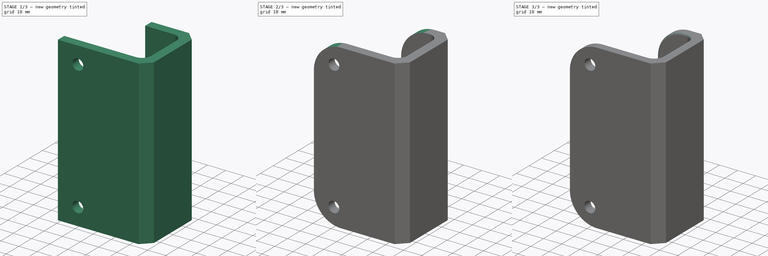
[diagram: build sequence overview — one tinted view per stage of 3, left to right]
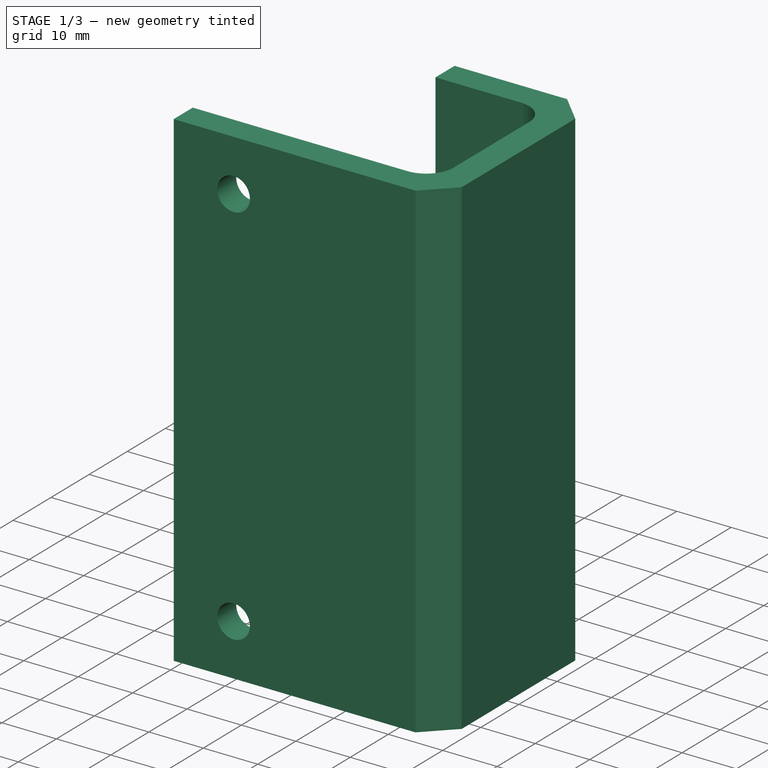
[diagram: stage 1 of 3 — iso view after this stage's code; geometry added in this stage tinted green]
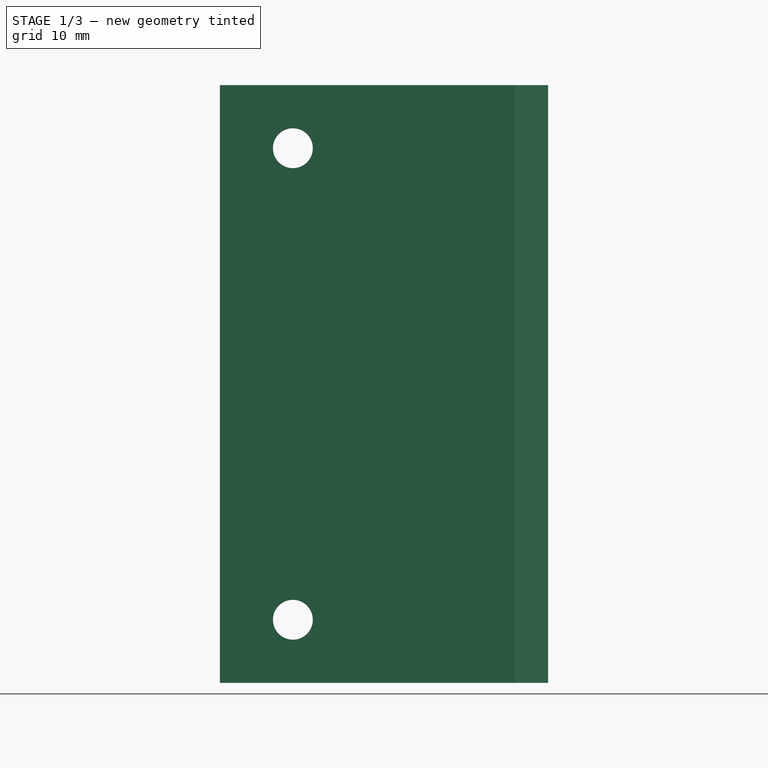
[diagram: stage 1 of 3 — front view after this stage's code; geometry added in this stage tinted green]
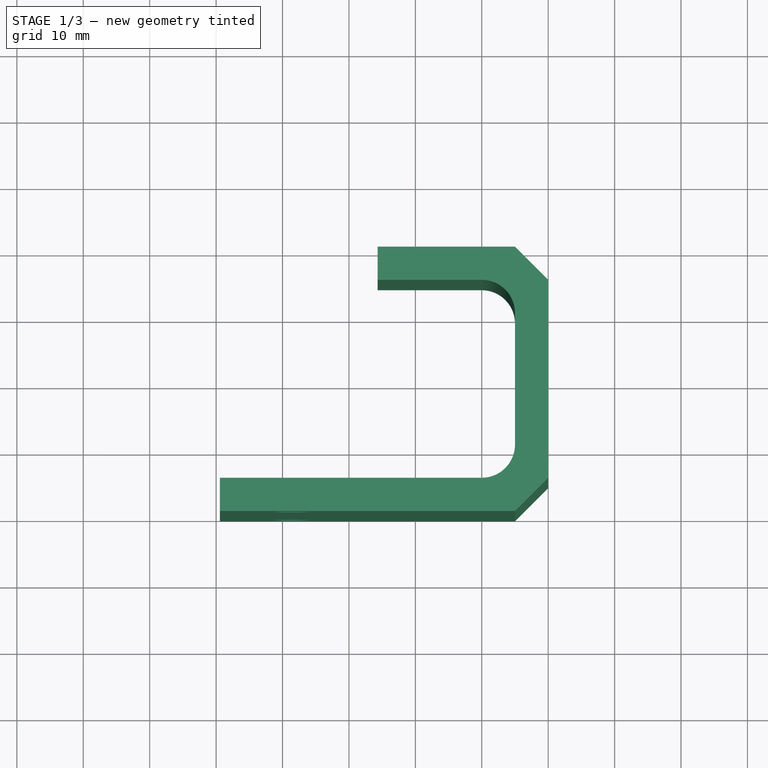
[diagram: stage 1 of 3 — top view after this stage's code; geometry added in this stage tinted green]
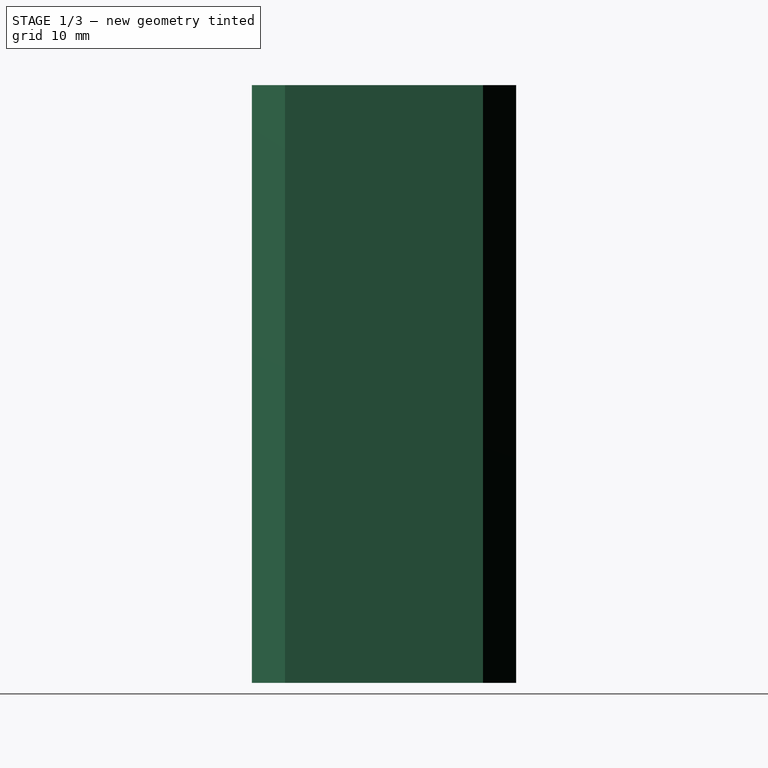
[diagram: stage 1 of 3 — right view after this stage's code; geometry added in this stage tinted green]
FCSTD DOCUMENT  (FreeCAD 1.1R42149 (Git))
Label: penshurst towel holder
License: All rights reserved
LicenseURL: https://en.wikipedia.org/wiki/All_rights_reserved
objects: PartDesign::Fillet×3, Sketcher::SketchObject×2, App::Point×1, PartDesign::Pad×1, PartDesign::Pocket×1, PartDesign::Body×1
note: 20 computed .brp shape members not serialized (recipe doc carries the construction recipe); baked Part::Feature solids carry a one-line shape summary decoded from their .brp

FEATURE [App::Point] Origin001
  Role = Origin
FEATURE [Sketcher::SketchObject] Sketch
  ArcFitTolerance = 1e-06
  AttachmentSupport = -> [Origin]
  ExternalTypes = [0]
  FullyConstrained = false
  MakeInternals = false
  MapMode = 5
  sketch-geometry (18):
    g0: LineSegment StartX=-49.4418 StartY=0 StartZ=0 EndX=-5 EndY=0 EndZ=0
    g1: LineSegment StartX=-1.26e-14 StartY=5 StartZ=0 EndX=-2.04e-14 EndY=8.13956 EndZ=0
    g2: LineSegment StartX=-20 StartY=5 StartZ=0 EndX=-49.4418 EndY=5 EndZ=0
    g3: LineSegment StartX=-49.4418 StartY=5 StartZ=0 EndX=-49.4418 EndY=0 EndZ=0
    g4: LineSegment StartX=-2.04e-14 StartY=8.13956 StartZ=0 EndX=0 EndY=34.804 EndZ=0
    g5: LineSegment StartX=-5 StartY=39.804 StartZ=0 EndX=-25.6872 EndY=39.804 EndZ=0
    g6: LineSegment StartX=-25.6872 StartY=39.804 StartZ=0 EndX=-25.6872 EndY=34.804 EndZ=0
    g7: LineSegment StartX=-20 StartY=5 StartZ=0 EndX=-10 EndY=5 EndZ=0
    g8: LineSegment StartX=-5 StartY=10 StartZ=0 EndX=-5 EndY=29.804 EndZ=0
    g9: LineSegment StartX=-10 StartY=34.804 StartZ=0 EndX=-25.6872 EndY=34.804 EndZ=0
    g10: ArcOfCircle CenterX=-10 CenterY=10 CenterZ=0 NormalX=0 NormalY=0 NormalZ=1 AngleXU=0 Radius=5 StartAngle=4.71239 EndAngle=6.28319
    g11: GeomPoint [constr] X=-5 Y=5 Z=0
    g12: ArcOfCircle CenterX=-10 CenterY=29.804 CenterZ=0 NormalX=0 NormalY=0 NormalZ=1 AngleXU=0 Radius=5 StartAngle=0 EndAngle=1.5708
    g13: GeomPoint [constr] X=-5 Y=34.804 Z=0
    g14: GeomPoint [constr] X=14.3128 Y=40 Z=0
    g15: GeomPoint [constr] X=0 Y=0 Z=0
    g16: LineSegment StartX=-5 StartY=0 StartZ=0 EndX=-1.24e-14 EndY=5 EndZ=0
    g17: LineSegment StartX=0 StartY=34.804 StartZ=0 EndX=-5 EndY=39.804 EndZ=0
  constraints (37):
    c: Horizontal(g0)
    c: Vertical(g3)
    c: Coincident(g5,g6)
    c: Coincident(g4,g1)
    c: DistanceX(g5,g14) = 40
    c: Vertical(g8)
    c: Horizontal(g7)
    c: Horizontal(g9)
    c: Horizontal(g2)
    c: Coincident(g3,g2)
    c: DistanceY(g3,g3) = 5
    c: Coincident(g3,g0)
    c: Coincident(g15,g-1)
    c: PointOnObject(g11,g8)
    c: PointOnObject(g11,g7)
    c: Tangent(g8,g10) = -1.5708
    c: Tangent(g7,g10) = -1.5708
    c: PointOnObject(g13,g9)
    c: PointOnObject(g13,g8)
    c: Tangent(g9,g12) = -1.5708
    c: Tangent(g8,g12) = -1.5708
    c: PointOnObject(g15,g1)
    c: PointOnObject(g15,g0)
    c: Equal(g10,g12)
    c: DistanceY(g9,g5) = 5
    c: Coincident(g2,g7)
    c: Horizontal(g5)
    c: Horizontal(g4,g9)
    c: Vertical(g5,g8)
    c: Horizontal(g1,g7)
    c: Vertical(g0,g8)
    c: Vertical(g6)
    c: Coincident(g6,g9)
    c: Coincident(g16,g0)
    c: Coincident(g16,g1)
    c: Coincident(g17,g4)
    c: Coincident(g17,g5)
FEATURE [PartDesign::Pad] Pad
  Direction = (0,0,1)
  Length = 90
  Length2 = 10
  Profile = -> Sketch
  ReferenceAxis = -> Sketch [N_Axis]
  Refine = true
  Suppressed = false
  Type = 0
FEATURE [Sketcher::SketchObject] Sketch001
  ArcFitTolerance = 1e-06
  ExternalGeometry = -> [Pad]
  ExternalTypes = [0]
  FullyConstrained = false
  MakeInternals = false
  MapMode = 5
  Placement = pos=(0,5,0) rot=(0,0.707107,0.707107;3.14159rad)
  sketch-geometry (3):
    g0: Circle CenterX=38.4418 CenterY=80.5 CenterZ=0 NormalX=0 NormalY=0 NormalZ=1 AngleXU=0 Radius=3
    g1: Circle CenterX=38.4418 CenterY=9.5 CenterZ=0 NormalX=0 NormalY=0 NormalZ=1 AngleXU=0 Radius=3
    g2: GeomPoint [constr] X=48.9418 Y=45 Z=0
  constraints (6):
    c: Vertical(g1,g0)
    c: DistanceY(g1,g0) = 71
    c: Equal(g0,g1)
    c: Diameter(g0) = 6
    c: DistanceY(g2,g0) = 35.5
    c: Symmetric(g-4,g-3,g2)
FEATURE [PartDesign::Pocket] Pocket
  BaseFeature = -> Pad
  Direction = (0,-1,2e-16)
  Length = 5
  Length2 = 5
  Profile = -> Sketch001
  ReferenceAxis = -> Sketch001 [N_Axis]
  Refine = true
  Suppressed = false
  Type = 0
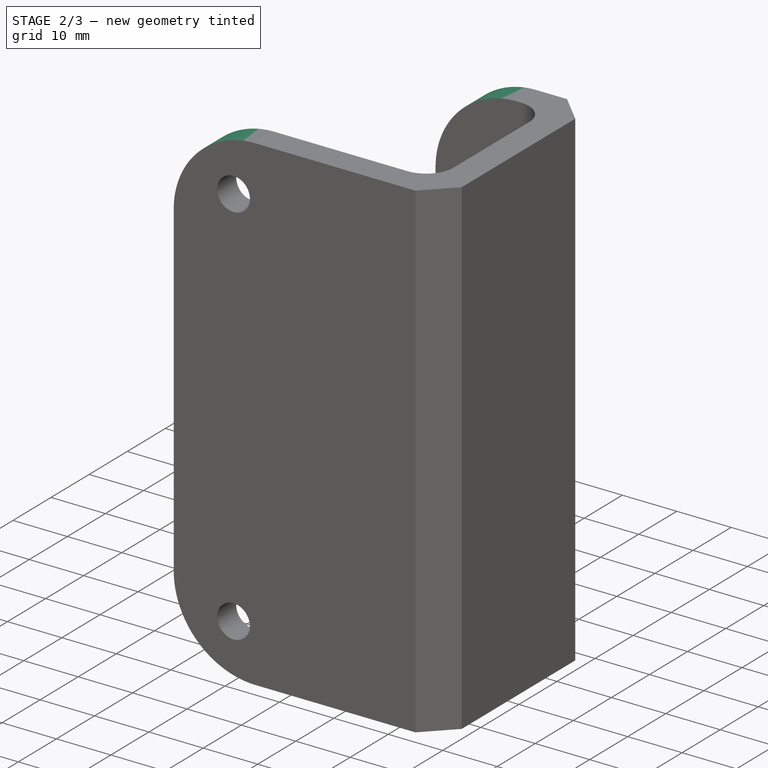
[diagram: stage 2 of 3 — iso view after this stage's code; geometry added in this stage tinted green]
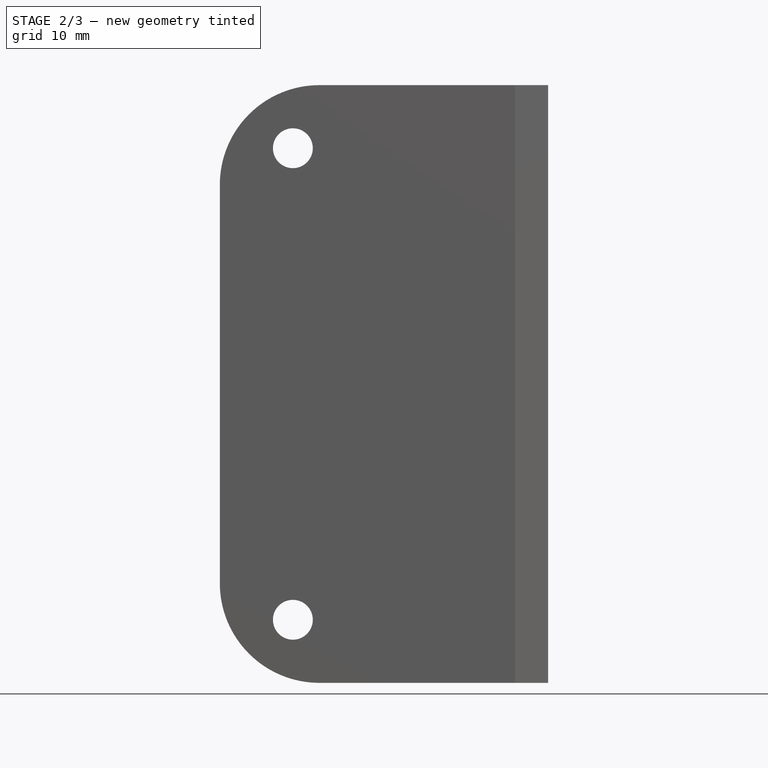
[diagram: stage 2 of 3 — front view after this stage's code; geometry added in this stage tinted green]
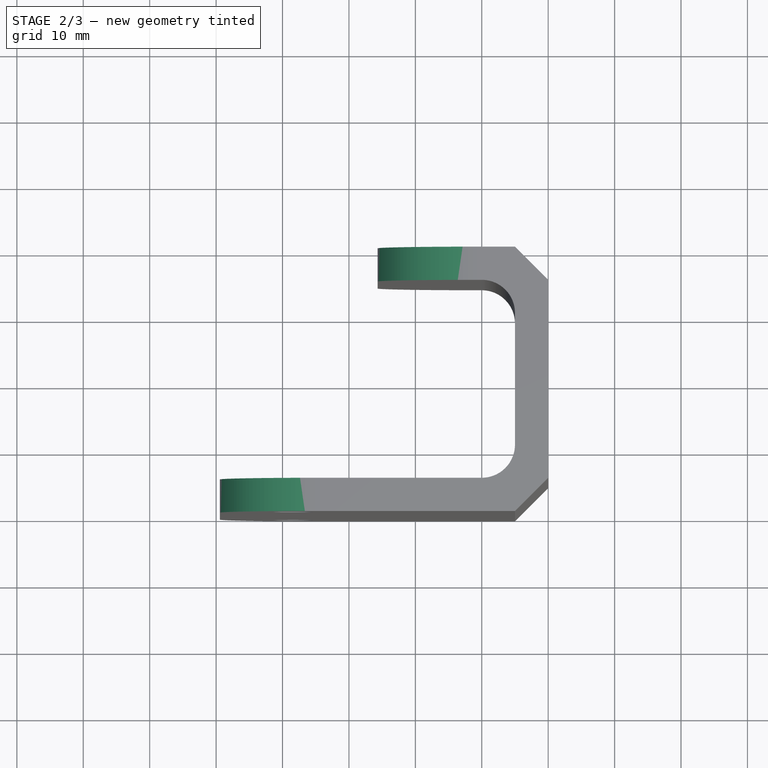
[diagram: stage 2 of 3 — top view after this stage's code; geometry added in this stage tinted green]
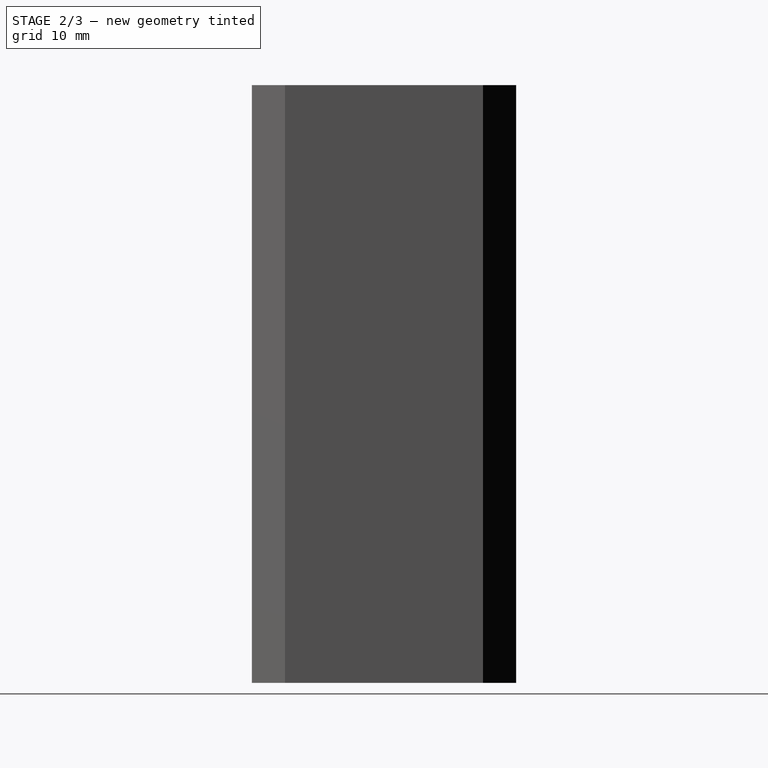
[diagram: stage 2 of 3 — right view after this stage's code; geometry added in this stage tinted green]
FEATURE [PartDesign::Fillet] Fillet
  Base = -> Pocket [Edge28,Edge19,Edge3,Edge4]
  BaseFeature = -> Pocket
  Radius = 15
  Refine = true
  SupportTransform = false
  Suppressed = false
  UseAllEdges = false
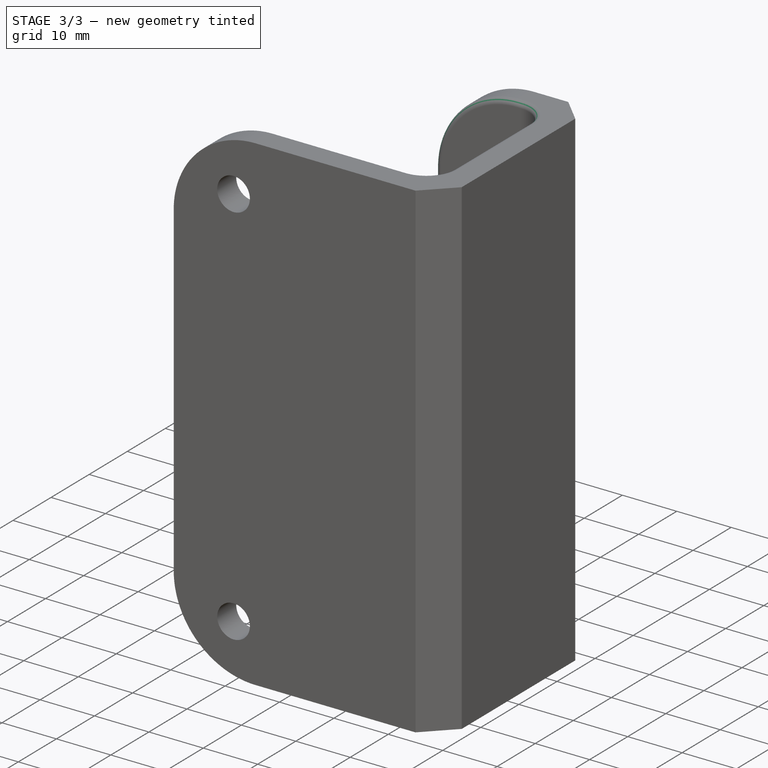
[diagram: stage 3 of 3 — iso view after this stage's code; geometry added in this stage tinted green]
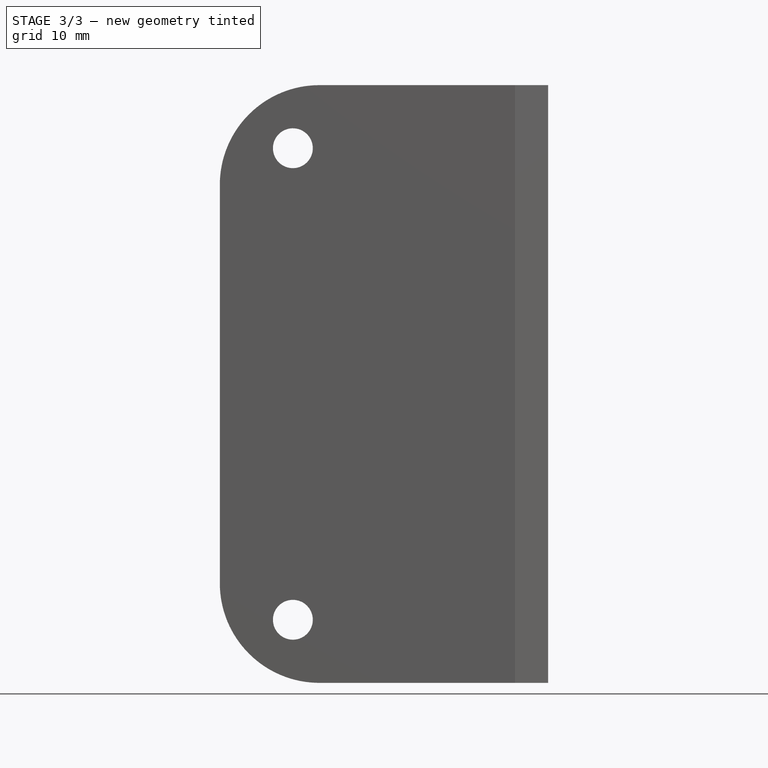
[diagram: stage 3 of 3 — front view after this stage's code; geometry added in this stage tinted green]
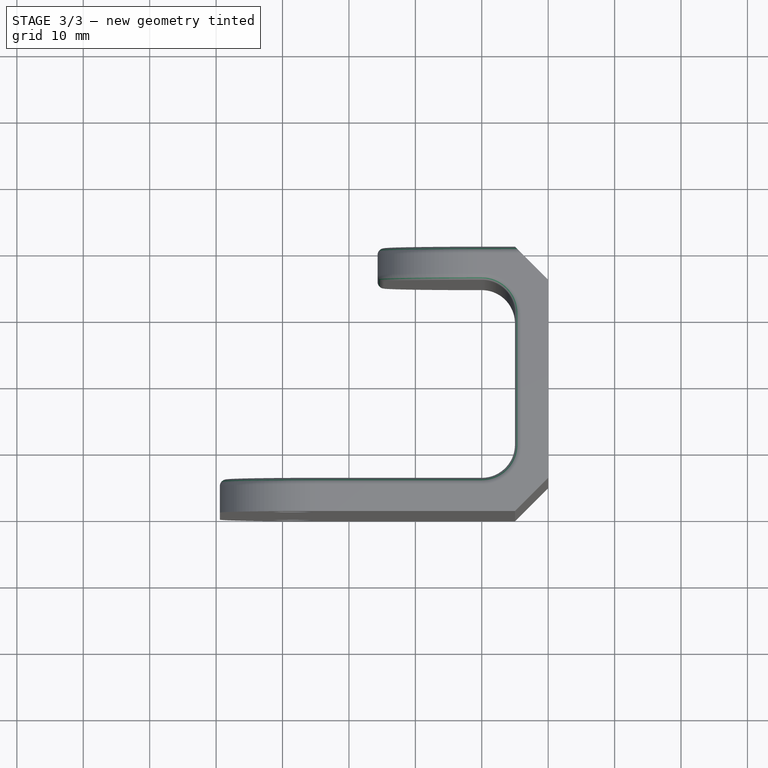
[diagram: stage 3 of 3 — top view after this stage's code; geometry added in this stage tinted green]
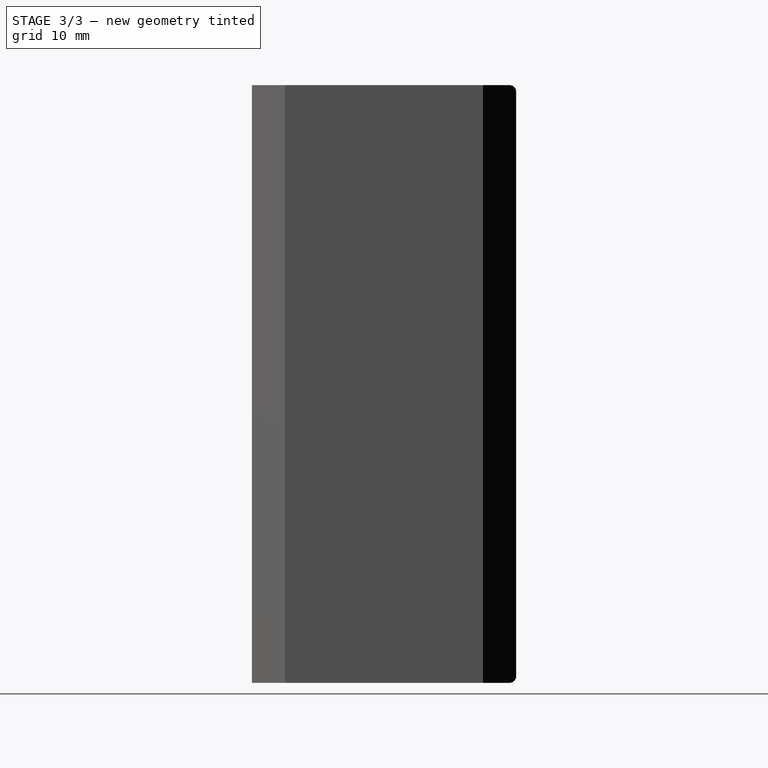
[diagram: stage 3 of 3 — right view after this stage's code; geometry added in this stage tinted green]
FEATURE [PartDesign::Fillet] Fillet001
  Base = -> Fillet [Edge1,Edge6,Edge8,Edge5,Edge7]
  BaseFeature = -> Fillet
  Radius = 1
  Refine = true
  SupportTransform = false
  Suppressed = false
  UseAllEdges = false
FEATURE [PartDesign::Fillet] Fillet002
  Base = -> Fillet001 [Edge64,Edge62,Edge63]
  BaseFeature = -> Fillet001
  Radius = 1
  Refine = true
  SupportTransform = false
  Suppressed = false
  UseAllEdges = false
FEATURE [PartDesign::Body] Body
  AllowCompound = false
  Group = -> [Sketch,Pad,Sketch001,Pocket,Fillet,Fillet001,Fillet002]
  Origin = -> Origin
  Tip = -> Fillet002
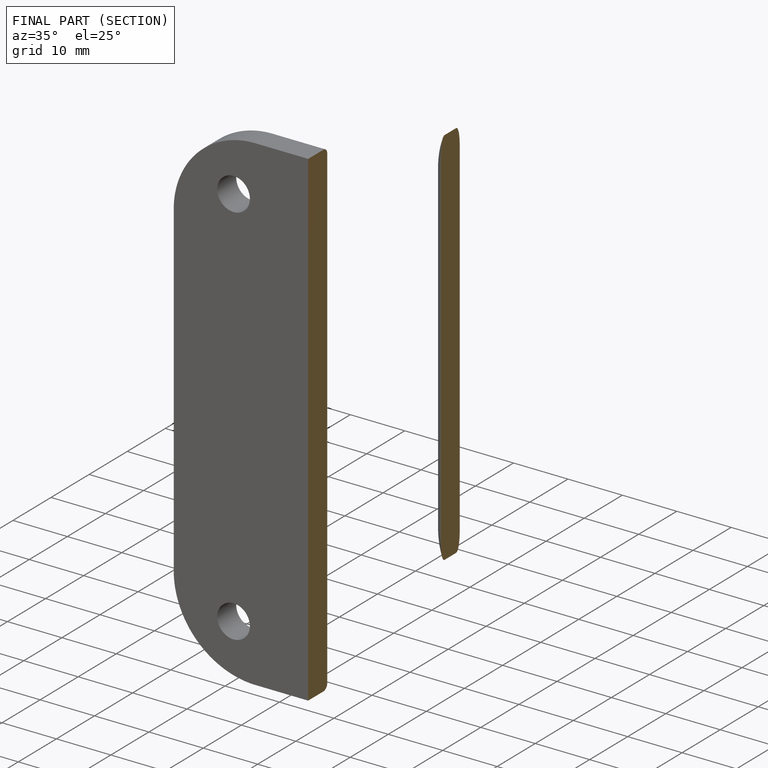
[diagram: finished part — half-section view (interior)]
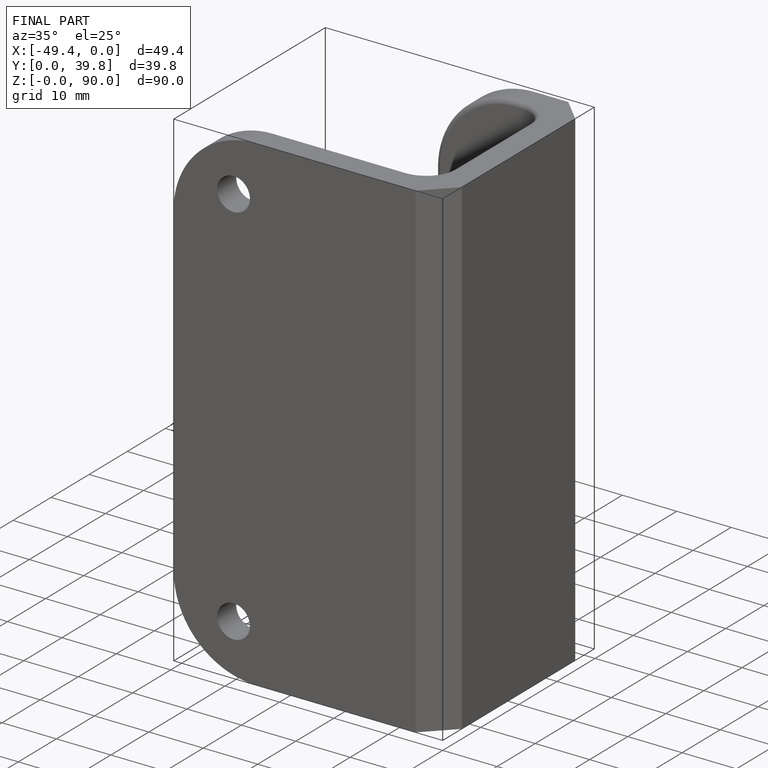
[diagram: finished part — iso view with bounding-box wireframe]
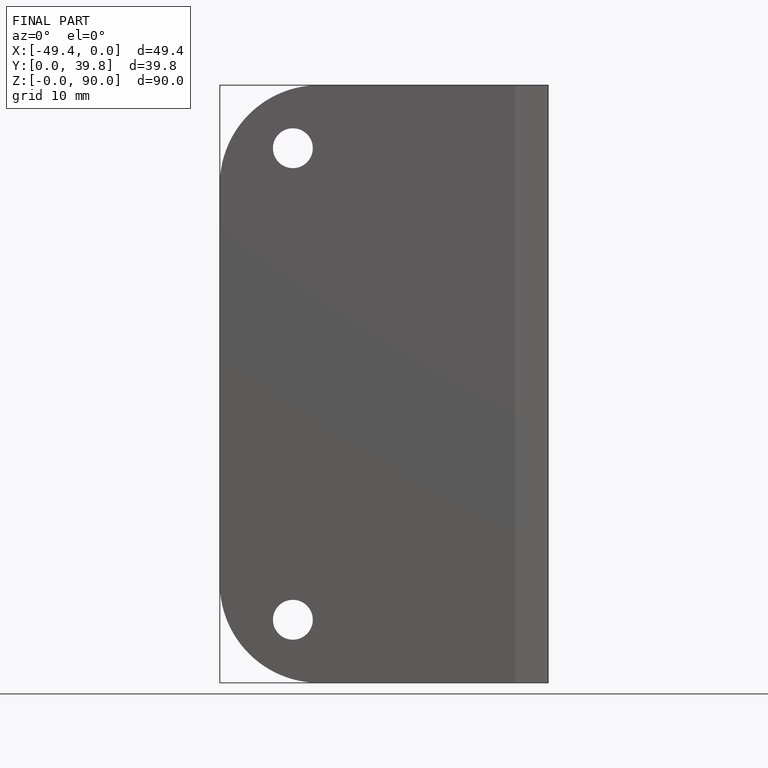
[diagram: finished part — front view with bounding-box wireframe]
